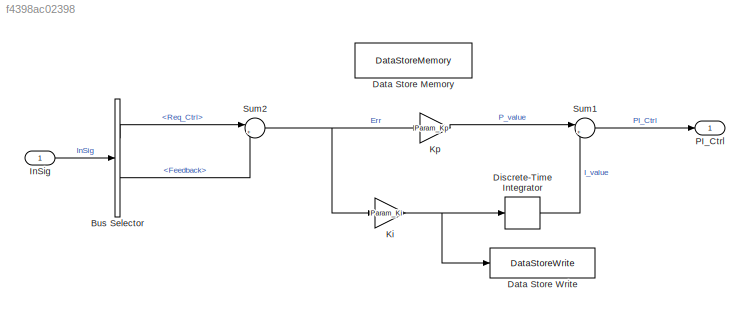
MODEL slx_f4398ac02398
KIND model
CONFIG AbsTol = auto
CONFIG EnableMultiTasking = off
CONFIG FixedStep = 0.001
CONFIG MaxStep = auto
CONFIG MinStep = auto
CONFIG RelTol = 1e-3
CONFIG SampleTimeConstraint = Unconstrained
CONFIG SolverName = FixedStepAuto
CONFIG StartTime = 0.0
CONFIG StopTime = 10.0
BLOCK [BusSelector] Bus Selector
  OutputSignals = Req_Ctrl,Feedback
  Ports = [1, 2]
BLOCK [DataStoreMemory] Data Store Memory
  DataStoreName = InternalStoreMemory
  ReadBeforeWriteMsg = warning
  ShowAdditionalParam = off
  StateMustResolveToSignalObject = on
  WriteAfterReadMsg = warning
  WriteAfterWriteMsg = warning
BLOCK [DataStoreWrite] Data Store Write
  DataStoreName = InternalStoreMemory
  Ports = [1]
BLOCK [DiscreteIntegrator] Discrete-Time Integrator
  ICPrevOutput = DiscIntNeverNeededParam
  ICPrevScaledInput = DiscIntNeverNeededParam
  InitialConditionSetting = Auto
  IntegratorMethod = Integration: Backward Euler
  Ports = [1, 1]
  SampleTime = -1
  StateMustResolveToSignalObject = on
  StateName = DiscIntegState
BLOCK [Inport] InSig
  OutDataTypeStr = Bus: InputBus
BLOCK [Gain] Ki
  Gain = Param_Ki
BLOCK [Gain] Kp
  Gain = Param_Kp
BLOCK [Outport] PI_Ctrl
  MustResolveToSignalObject = on
  SignalName = OutSig
BLOCK [Sum] Sum1
  Inputs = |++
  Ports = [2, 1]
BLOCK [Sum] Sum2
  Inputs = |+-
  Ports = [2, 1]
LINE Bus Selector:1 -> Sum2:1
LINE Bus Selector:2 -> Sum2:2
LINE Discrete-Time Integrator:1 -> Sum1:2
LINE InSig:1 -> Bus Selector:1
NET Ki:1 -> Data Store Write:1, Discrete-Time Integrator:1
LINE Kp:1 -> Sum1:1
LINE Sum1:1 -> PI_Ctrl:1
NET Sum2:1 -> Ki:1, Kp:1
note: NET lines group one-source signal fan-out (src -> all destinations, sorted); 1:1 wires keep LINE
